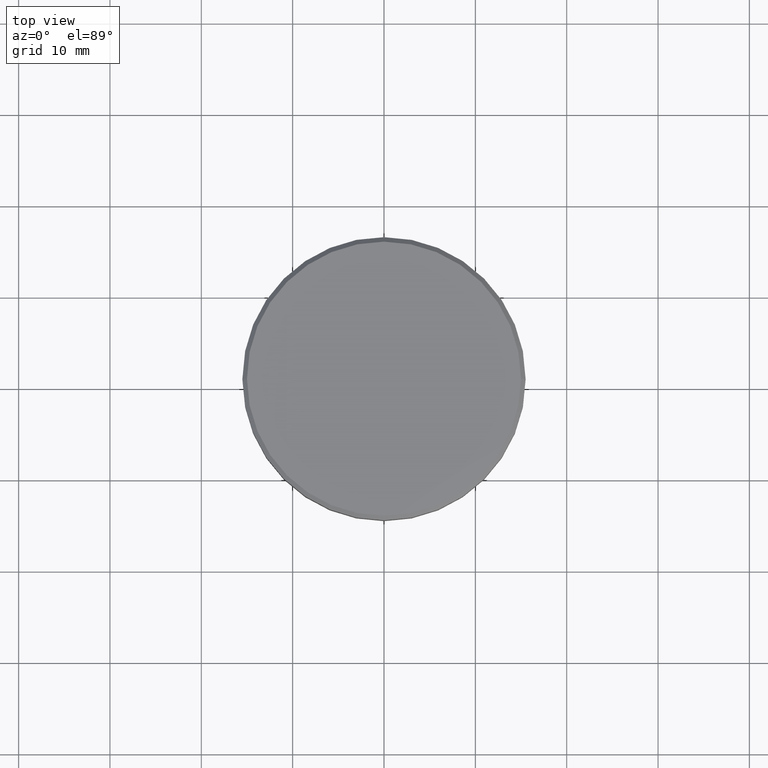
[diagram: clean part render]
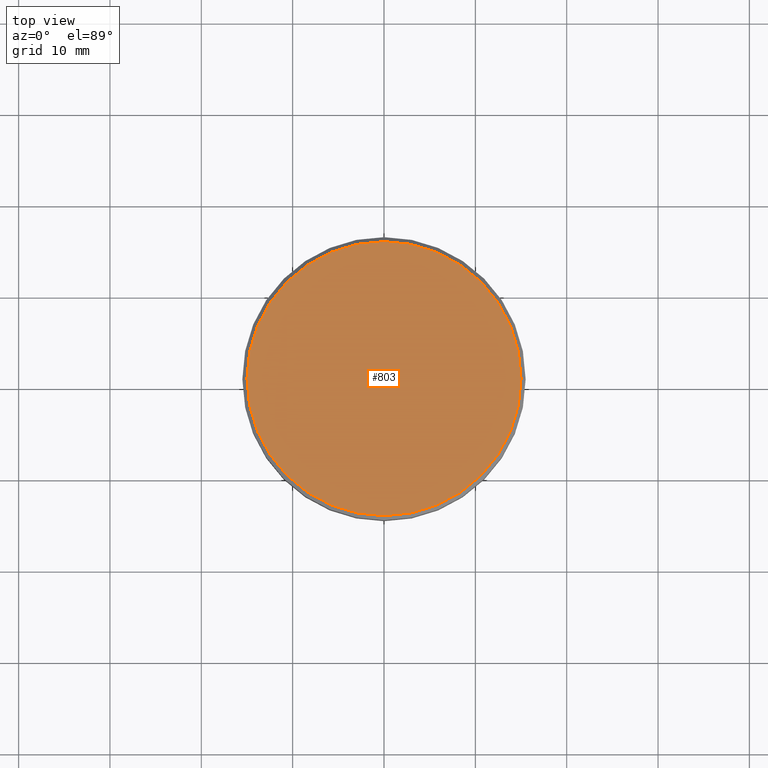
[diagram: same view with one face highlighted and labeled with its STEP entity id]
A machine part, top view. The second image highlights one B-rep face of the part: STEP entity #803.
In plain terms, the highlighted planar face has unit normal (0, -0, 1).
Its self-contained STEP definition (entity closure, byte-faithful):
#1 = AXIS2_PLACEMENT_3D ( 'NONE', #1155, #910, #364 ) ;
#55 = ORIENTED_EDGE ( 'NONE', *, *, #654, .T. ) ;
#62 = AXIS2_PLACEMENT_3D ( 'NONE', #337, #961, #1043 ) ;
#253 = EDGE_CURVE ( 'NONE', #1097, #925, #608, .T. ) ;
#266 = CIRCLE ( 'NONE', #1, 14.99999999999999289 ) ;
#337 = CARTESIAN_POINT ( 'NONE',  ( 0.000000000000000000, 0.000000000000000000, 0.000000000000000000 ) ) ;
#364 = DIRECTION ( 'NONE',  ( 1.000000000000000000, 0.000000000000000000, 0.000000000000000000 ) ) ;
#600 = EDGE_LOOP ( 'NONE', ( #55, #1136 ) ) ;
#608 = CIRCLE ( 'NONE', #879, 14.99999999999999289 ) ;
#654 = EDGE_CURVE ( 'NONE', #925, #1097, #266, .T. ) ;
#684 = FACE_OUTER_BOUND ( 'NONE', #600, .T. ) ;
#689 = DIRECTION ( 'NONE',  ( -0.000000000000000000, -0.000000000000000000, 1.000000000000000000 ) ) ;
#803 = ADVANCED_FACE ( 'NONE', ( #684 ), #1160, .T. ) ;
#867 = CARTESIAN_POINT ( 'NONE',  ( 0.000000000000000000, 0.000000000000000000, 0.000000000000000000 ) ) ;
#879 = AXIS2_PLACEMENT_3D ( 'NONE', #867, #689, #1047 ) ;
#910 = DIRECTION ( 'NONE',  ( -0.000000000000000000, -0.000000000000000000, 1.000000000000000000 ) ) ;
#925 = VERTEX_POINT ( 'NONE', #983 ) ;
#961 = DIRECTION ( 'NONE',  ( 0.000000000000000000, -0.000000000000000000, 1.000000000000000000 ) ) ;
#967 = CARTESIAN_POINT ( 'NONE',  ( 14.99999999999999289, 1.867586368699713376E-15, 0.000000000000000000 ) ) ;
#983 = CARTESIAN_POINT ( 'NONE',  ( -14.99999999999999289, 0.000000000000000000, 0.000000000000000000 ) ) ;
#1043 = DIRECTION ( 'NONE',  ( 1.000000000000000000, 0.000000000000000000, 0.000000000000000000 ) ) ;
#1047 = DIRECTION ( 'NONE',  ( 1.000000000000000000, 0.000000000000000000, 0.000000000000000000 ) ) ;
#1097 = VERTEX_POINT ( 'NONE', #967 ) ;
#1136 = ORIENTED_EDGE ( 'NONE', *, *, #253, .T. ) ;
#1155 = CARTESIAN_POINT ( 'NONE',  ( 0.000000000000000000, 0.000000000000000000, 0.000000000000000000 ) ) ;
#1160 = PLANE ( 'NONE',  #62 ) ;